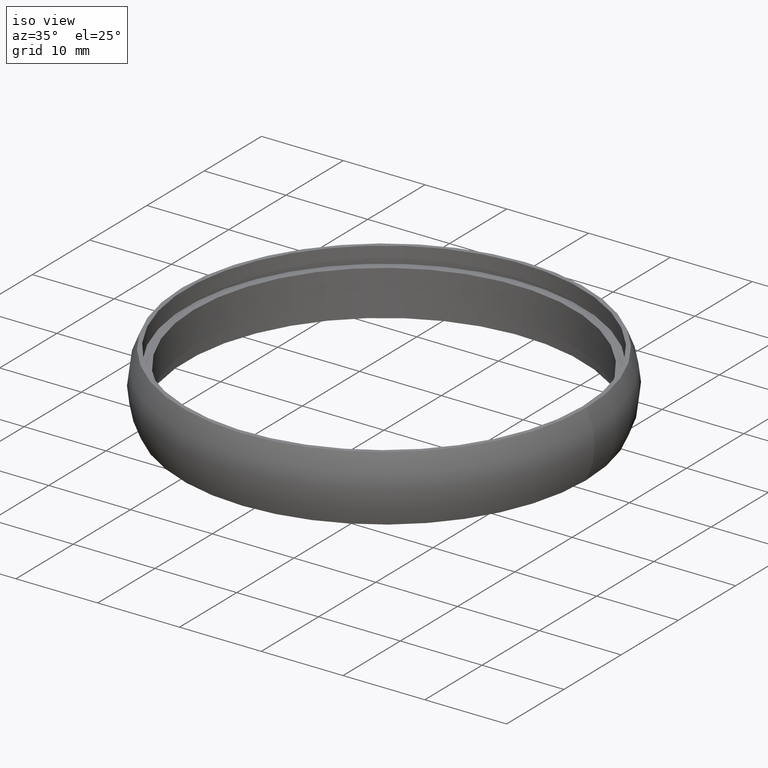
[diagram: clean part render]
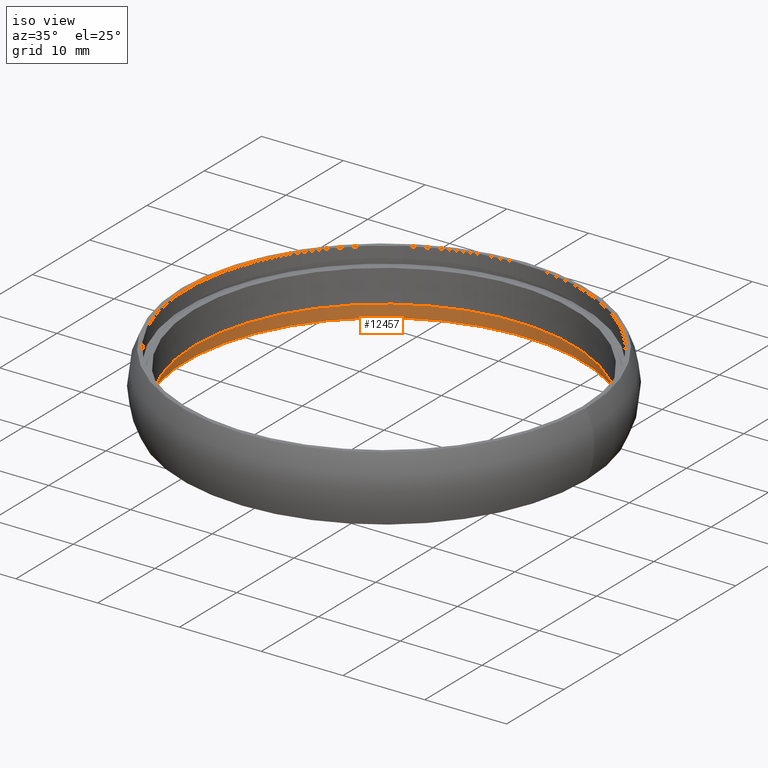
[diagram: same view with one face highlighted and labeled with its STEP entity id]
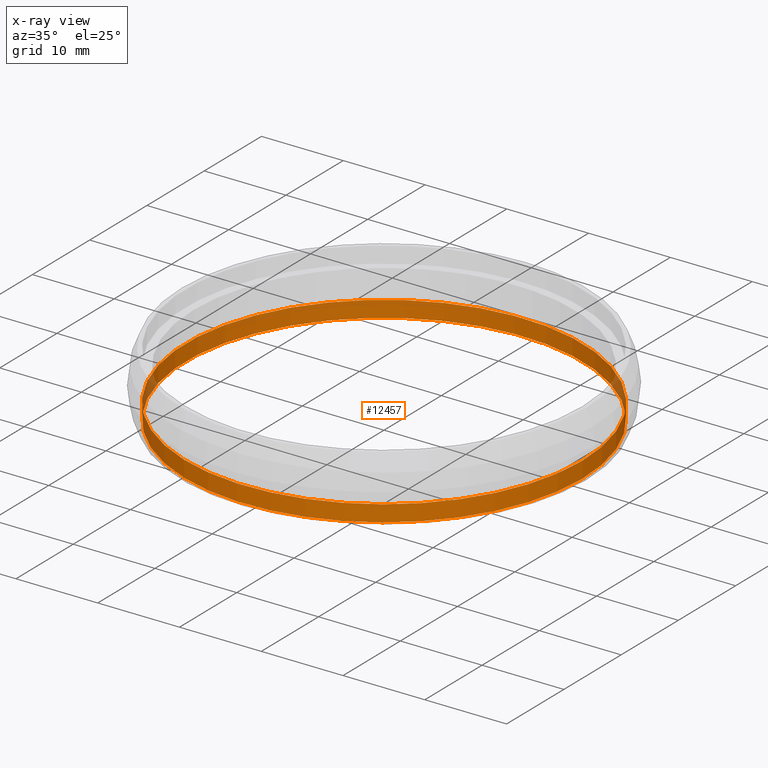
[diagram: x-ray of the same camera — body ghosted, the highlighted face saturated]
A machine part, iso view. The second image highlights one B-rep face of the part: STEP entity #12457.
The next image is the same camera in x-ray: the body ghosted, the highlighted face saturated — about 3% of this face is hidden behind the body in this view.
In plain terms, the highlighted cylindrical surface (bore or boss wall) has radius 24.25 mm, axis along (-0, -0, 1).
Its self-contained STEP definition (entity closure, byte-faithful):
#228 = CIRCLE ( 'NONE', #5869, 24.25000000000000000 ) ;
#319 = AXIS2_PLACEMENT_3D ( 'NONE', #8170, #9967, #5010 ) ;
#348 = ORIENTED_EDGE ( 'NONE', *, *, #6724, .T. ) ;
#599 = AXIS2_PLACEMENT_3D ( 'NONE', #6603, #4603, #12770 ) ;
#763 = EDGE_LOOP ( 'NONE', ( #4134 ) ) ;
#981 = CIRCLE ( 'NONE', #319, 24.25000000000000000 ) ;
#2119 = CYLINDRICAL_SURFACE ( 'NONE', #599, 24.25000000000000000 ) ;
#4134 = ORIENTED_EDGE ( 'NONE', *, *, #10096, .F. ) ;
#4603 = DIRECTION ( 'NONE',  ( -0.0000000000000000000, -0.0000000000000000000, 1.000000000000000000 ) ) ;
#4945 = CARTESIAN_POINT ( 'NONE',  ( 0.0000000000000000000, 0.0000000000000000000, -2.000000000000000000 ) ) ;
#5010 = DIRECTION ( 'NONE',  ( 1.000000000000000000, 0.0000000000000000000, 0.0000000000000000000 ) ) ;
#5854 = VERTEX_POINT ( 'NONE', #10108 ) ;
#5869 = AXIS2_PLACEMENT_3D ( 'NONE', #4945, #12959, #8874 ) ;
#6519 = EDGE_LOOP ( 'NONE', ( #348 ) ) ;
#6603 = CARTESIAN_POINT ( 'NONE',  ( 0.0000000000000000000, 0.0000000000000000000, 0.0000000000000000000 ) ) ;
#6724 = EDGE_CURVE ( 'NONE', #5854, #5854, #228, .T. ) ;
#8170 = CARTESIAN_POINT ( 'NONE',  ( 0.0000000000000000000, 0.0000000000000000000, -4.000000000000000000 ) ) ;
#8575 = FACE_OUTER_BOUND ( 'NONE', #763, .T. ) ;
#8874 = DIRECTION ( 'NONE',  ( 1.000000000000000000, 0.0000000000000000000, 0.0000000000000000000 ) ) ;
#9967 = DIRECTION ( 'NONE',  ( -0.0000000000000000000, -0.0000000000000000000, 1.000000000000000000 ) ) ;
#9979 = CARTESIAN_POINT ( 'NONE',  ( 24.25000000000000000, 0.0000000000000000000, -4.000000000000000000 ) ) ;
#10096 = EDGE_CURVE ( 'NONE', #10919, #10919, #981, .T. ) ;
#10108 = CARTESIAN_POINT ( 'NONE',  ( 24.25000000000000000, 0.0000000000000000000, -2.000000000000000000 ) ) ;
#10919 = VERTEX_POINT ( 'NONE', #9979 ) ;
#11859 = FACE_OUTER_BOUND ( 'NONE', #6519, .T. ) ;
#12457 = ADVANCED_FACE ( 'NONE', ( #8575, #11859 ), #2119, .F. ) ;
#12770 = DIRECTION ( 'NONE',  ( 1.000000000000000000, 0.0000000000000000000, 0.0000000000000000000 ) ) ;
#12959 = DIRECTION ( 'NONE',  ( -0.0000000000000000000, -0.0000000000000000000, 1.000000000000000000 ) ) ;